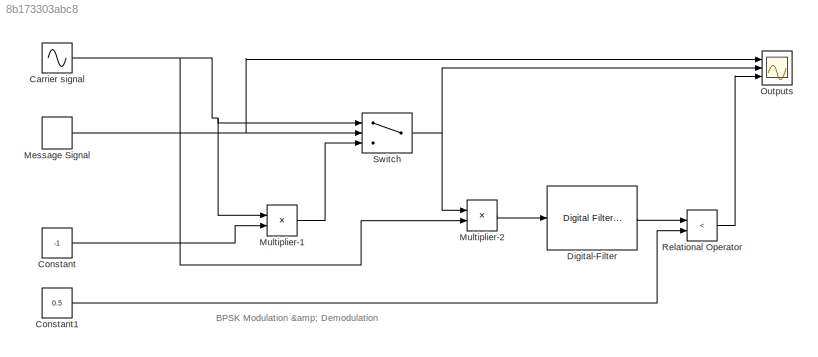
MODEL slx_8b173303abc8
KIND model
CONFIG AbsTol = auto
CONFIG EnableMultiTasking = off
CONFIG FixedStep = auto
CONFIG MaxStep = auto
CONFIG MinStep = auto
CONFIG RelTol = 1e-3
CONFIG SampleTimeConstraint = Unconstrained
CONFIG SolverName = VariableStepAuto
CONFIG StartTime = 0.0
CONFIG StopTime = 10.0
BLOCK [Sin] Carrier signal
  Amplitude = 2
  Frequency = 2*pi*4
  Ports = [0, 1]
  SampleTime = 0.01
BLOCK [Constant] Constant
  Value = -1
BLOCK [Constant] Constant1
  Value = 0.5
BLOCK [Reference] Digital-Filter   REF=dsparch4/Digital
Filter Design
  Ports = [1, 1]
  SourceBlock = dsparch4/Digital\nFilter Design
  SourceProductBaseCode = DS
  SourceType = Digital Filter Design
  UserDataPersistent = on
BLOCK [DiscretePulseGenerator] Message Signal
  Ports = [0, 1]
  PulseType = Time based
  PulseWidth = 50
BLOCK [Product] Multiplier-1
  Ports = [2, 1]
BLOCK [Product] Multiplier-2
  Ports = [2, 1]
BLOCK [Scope] Outputs
  Floating = off
  NumInputPorts = 3
  Ports = [3]
  ScopeSpecificationString = Simulink.scopes.TimeScopeBlockCfg('CurrentConfiguration', extmgr.ConfigurationSet(extmgr.Configuration('Core','General UI',true),extmgr.Configuration('Core','Source UI',true),extmgr.Configuration('Sources','WiredSimulink',true),extmgr.Configuration('Visuals','Time Domain',true,'SerializedDisplays',{struct('MinYLimReal','-0.125','MaxYLimReal','1.125','YLabelReal','','MinYLimMag','0.00000','MaxYLimM...<+3609ch>
BLOCK [RelationalOperator] Relational Operator
  InputSameDT = off
  Operator = <
  OutDataTypeStr = boolean
  Ports = [2, 1]
  RndMeth = Simplest
BLOCK [Switch] Switch
  Criteria = u2 > Threshold
  InputSameDT = off
  SaturateOnIntegerOverflow = off
ANNOTATION (root): BPSK Modulation & Demodulation
NET Carrier signal:1 -> Multiplier-1:1, Multiplier-2:2, Switch:1
LINE Constant1:1 -> Relational Operator:2
LINE Constant:1 -> Multiplier-1:2
LINE Digital-Filter :1 -> Relational Operator:1
NET Message Signal:1 -> Outputs:1, Switch:2
LINE Multiplier-1:1 -> Switch:3
LINE Multiplier-2:1 -> Digital-Filter :1
LINE Relational Operator:1 -> Outputs:3
NET Switch:1 -> Multiplier-2:1, Outputs:2
note: NET lines group one-source signal fan-out (src -> all destinations, sorted); 1:1 wires keep LINE
